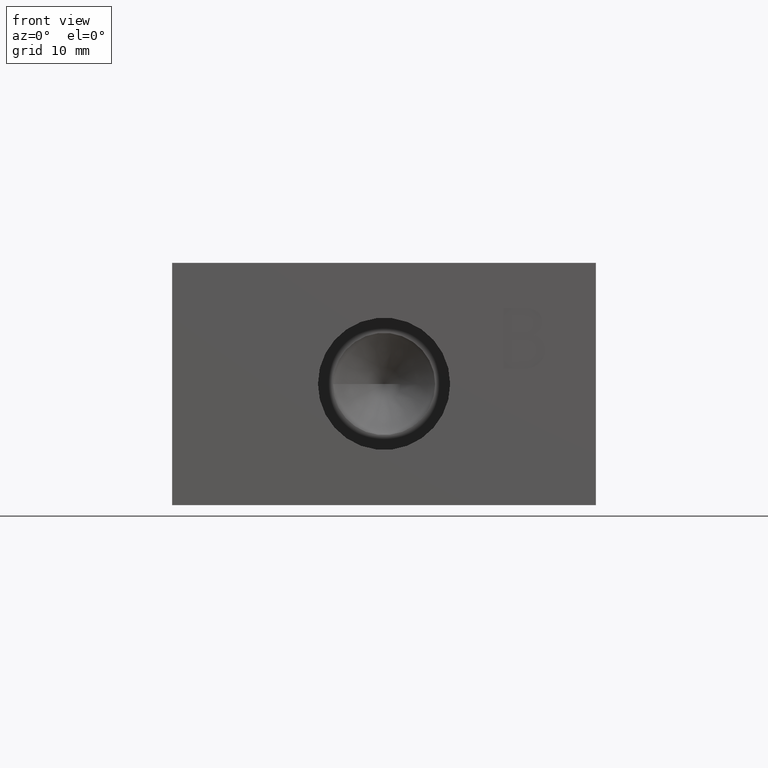
[diagram: clean part render]
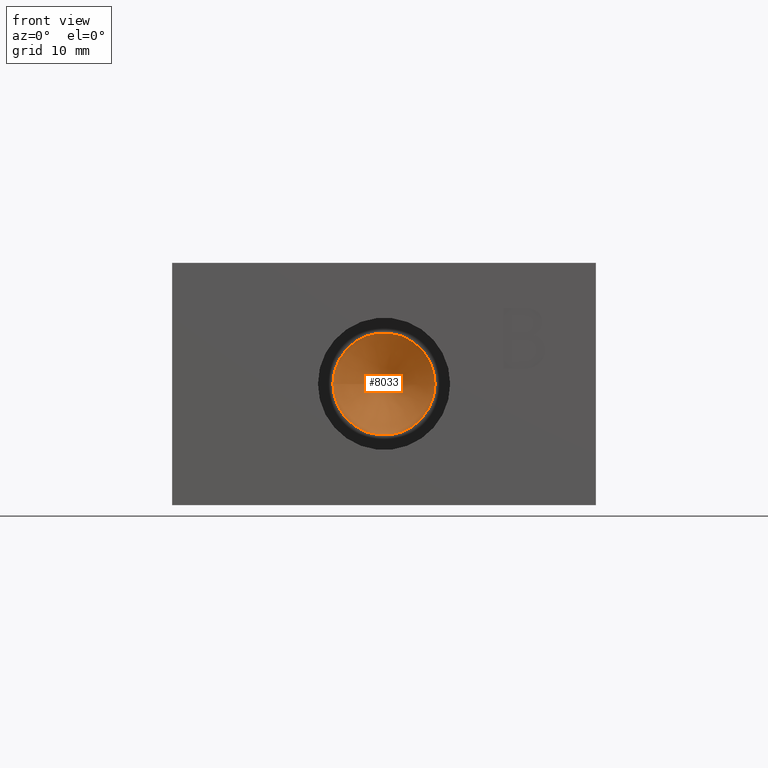
[diagram: same view with one face highlighted and labeled with its STEP entity id]
A machine part, front view. The second image highlights one B-rep face of the part: STEP entity #8033.
In plain terms, the highlighted conical surface has half-angle 60 deg.
Its self-contained STEP definition (entity closure, byte-faithful):
#48=CONICAL_SURFACE('',#8408,2.6797,1.0471975511966);
#90=CIRCLE('',#8409,5.3594);
#840=FACE_OUTER_BOUND('',#1304,.T.);
#1304=EDGE_LOOP('',(#7098,#7099,#7100));
#2167=LINE('',#13448,#3015);
#3015=VECTOR('',#9954,2.6797);
#3923=VERTEX_POINT('',#13445);
#3924=VERTEX_POINT('',#13447);
#4997=EDGE_CURVE('',#3923,#3923,#90,.T.);
#4998=EDGE_CURVE('',#3923,#3924,#2167,.T.);
#7098=ORIENTED_EDGE('',*,*,#4997,.T.);
#7099=ORIENTED_EDGE('',*,*,#4998,.T.);
#7100=ORIENTED_EDGE('',*,*,#4998,.F.);
#8033=ADVANCED_FACE('',(#840),#48,.F.);
#8408=AXIS2_PLACEMENT_3D('',#13444,#9950,#9951);
#8409=AXIS2_PLACEMENT_3D('',#13446,#9952,#9953);
#9950=DIRECTION('center_axis',(0.,-1.,0.));
#9951=DIRECTION('ref_axis',(1.,0.,0.));
#9952=DIRECTION('center_axis',(0.,-1.,0.));
#9953=DIRECTION('ref_axis',(1.,0.,0.));
#9954=DIRECTION('',(0.866025403784439,0.5,1.06057523872491E-16));
#13444=CARTESIAN_POINT('Origin',(22.225,13.2611555163474,12.7));
#13445=CARTESIAN_POINT('',(16.8656,11.71403,12.7));
#13446=CARTESIAN_POINT('Origin',(22.225,11.71403,12.7));
#13447=CARTESIAN_POINT('',(22.225,14.8082810326949,12.7));
#13448=CARTESIAN_POINT('',(19.5453,13.2611555163474,12.7));